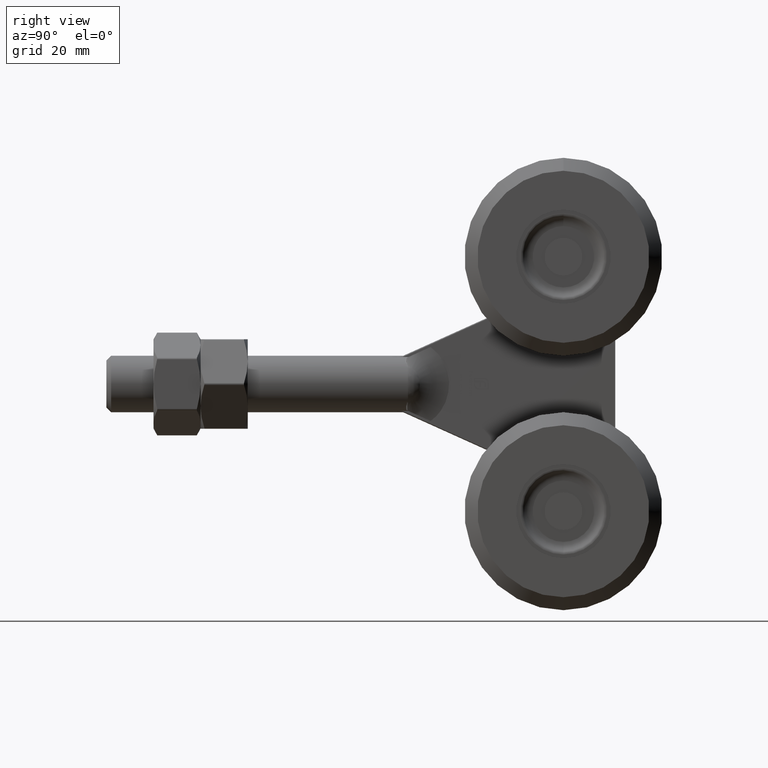
[diagram: clean part render]
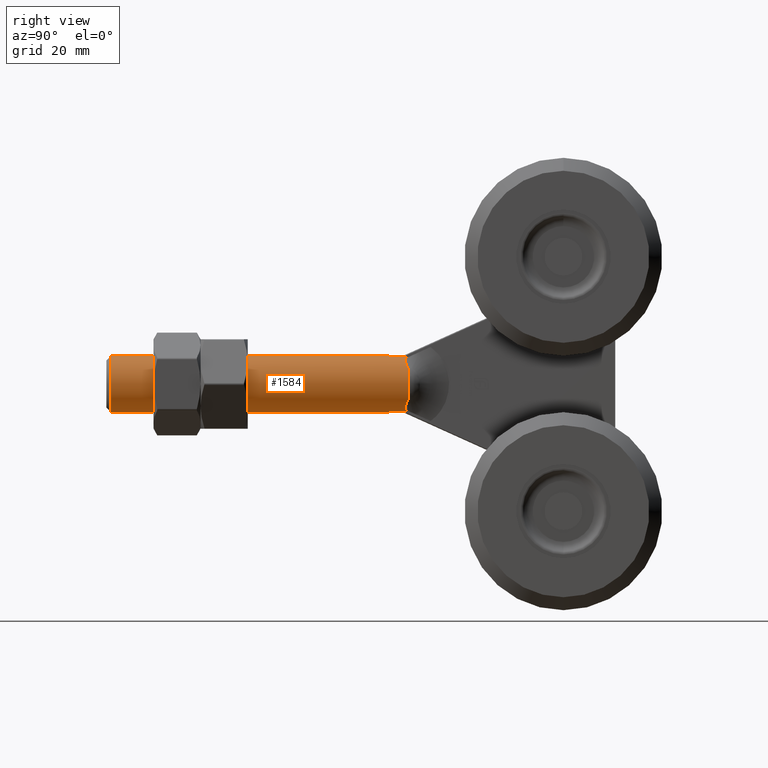
[diagram: same view with one face highlighted and labeled with its STEP entity id]
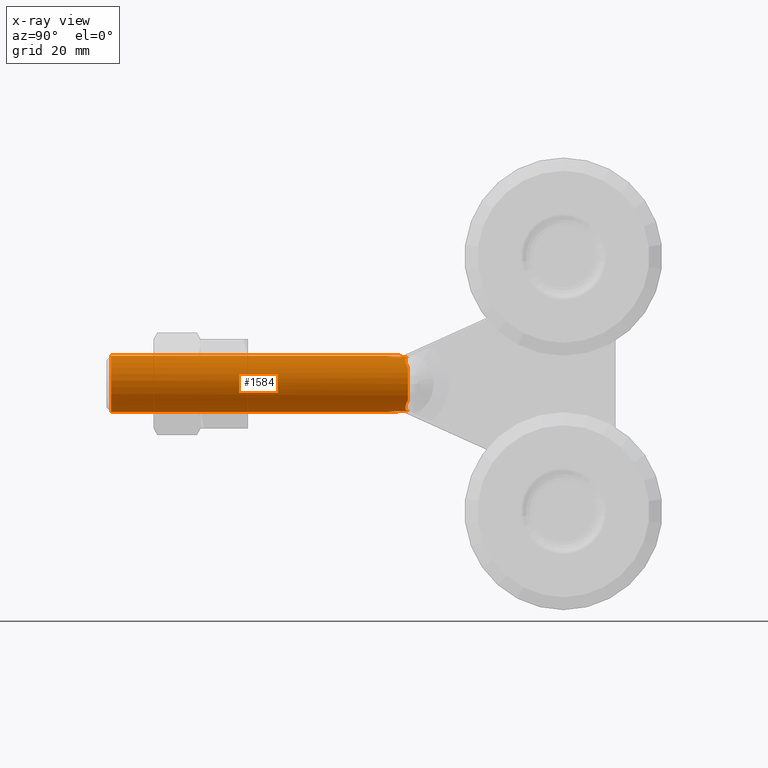
[diagram: x-ray of the same camera — body ghosted, the highlighted face saturated]
A machine part, right view. The second image highlights one B-rep face of the part: STEP entity #1584.
The next image is the same camera in x-ray: the body ghosted, the highlighted face saturated — about 0% of this face is hidden behind the body in this view.
In plain terms, the highlighted cylindrical surface (bore or boss wall) has radius 6 mm, axis along (0, -1, -0).
Its self-contained STEP definition (entity closure, byte-faithful):
#20 = ORIENTED_EDGE ( 'NONE', *, *, #14525, .T. ) ;
#114 = CARTESIAN_POINT ( 'NONE',  ( -0.02555754303099119426, -0.05387995826428611246, -5.999945567419269210 ) ) ;
#176 = VERTEX_POINT ( 'NONE', #6408 ) ;
#191 = CARTESIAN_POINT ( 'NONE',  ( -4.856250000000001066, 0.9500000000000011768, -3.523753103936192232 ) ) ;
#229 = DIRECTION ( 'NONE',  ( 0.000000000000000000, -1.000000000000000000, -1.224646799147353454E-16 ) ) ;
#238 = ORIENTED_EDGE ( 'NONE', *, *, #18565, .F. ) ;
#338 = LINE ( 'NONE', #4889, #3932 ) ;
#355 = CARTESIAN_POINT ( 'NONE',  ( 1.049719006401245380, -2.213237735482397106, 5.931545619683752157 ) ) ;
#361 = CARTESIAN_POINT ( 'NONE',  ( -2.132193120447432477, 0.7444846238725135734, -5.608364511790988161 ) ) ;
#381 = CARTESIAN_POINT ( 'NONE',  ( -1.750000000000000444, -0.07802710960825523512, 5.739120141624507454 ) ) ;
#403 = CARTESIAN_POINT ( 'NONE',  ( 0.000000000000000000, -61.99999999999997158, -6.000000000000000888 ) ) ;
#495 = CARTESIAN_POINT ( 'NONE',  ( -1.667855411254956399, -2.216840521480196280, -5.764508838439502902 ) ) ;
#584 = CARTESIAN_POINT ( 'NONE',  ( -3.776140250571299095, 0.4703988601179117102, 4.665490031516283942 ) ) ;
#601 = EDGE_CURVE ( 'NONE', #2120, #6217, #14562, .T. ) ;
#656 = DIRECTION ( 'NONE',  ( -0.000000000000000000, 1.000000000000000000, 1.224646799147353454E-16 ) ) ;
#742 = CARTESIAN_POINT ( 'NONE',  ( 3.043512781934104350, 0.4499999999999996225, 5.170786201942971338 ) ) ;
#780 = EDGE_LOOP ( 'NONE', ( #4357 ) ) ;
#791 = CARTESIAN_POINT ( 'NONE',  ( -4.021420531599393833, 0.5318647356594973230, 4.455806249624566284 ) ) ;
#843 = CARTESIAN_POINT ( 'NONE',  ( -2.500597746676872735, 0.5443988854629068230, -5.454759071245316449 ) ) ;
#908 = DIRECTION ( 'NONE',  ( 8.881784197001252323E-16, -5.421010862427521554E-17, 1.000000000000000000 ) ) ;
#933 = VERTEX_POINT ( 'NONE', #191 ) ;
#958 = CARTESIAN_POINT ( 'NONE',  ( -1.565217391304357664, -3.282281072664935628, 5.792244342045537842 ) ) ;
#980 = VERTEX_POINT ( 'NONE', #15671 ) ;
#1039 = CARTESIAN_POINT ( 'NONE',  ( 0.02555754302969398886, -0.05387995826139851258, -5.999945567419275427 ) ) ;
#1226 = ORIENTED_EDGE ( 'NONE', *, *, #17199, .F. ) ;
#1274 = ORIENTED_EDGE ( 'NONE', *, *, #19206, .T. ) ;
#1294 = LINE ( 'NONE', #5605, #5350 ) ;
#1308 = LINE ( 'NONE', #1444, #10587 ) ;
#1376 = CARTESIAN_POINT ( 'NONE',  ( 0.02555754302969398886, -0.05387995826139851258, -5.999945567419275427 ) ) ;
#1386 = CARTESIAN_POINT ( 'NONE',  ( 0.008519232535428933675, -0.05371228364879688383, 6.000018144303321144 ) ) ;
#1390 = LINE ( 'NONE', #3728, #9222 ) ;
#1401 = AXIS2_PLACEMENT_3D ( 'NONE', #14840, #2653, #13281 ) ;
#1444 = CARTESIAN_POINT ( 'NONE',  ( -4.856250000000001066, 5.000000000000004441, -3.523753103936191788 ) ) ;
#1506 = B_SPLINE_CURVE_WITH_KNOTS ( 'NONE', 3,
 ( #1758, #6341, #17477, #18900, #12586, #9661, #12790, #11331 ),
 .UNSPECIFIED., .F., .F.,
 ( 4, 2, 2, 4 ),
 ( -1.199625888377036107E-05, 0.0009799149276531803152, 0.001475870520921654773, 0.001971826114190128147 ),
 .UNSPECIFIED. ) ;
#1521 = CARTESIAN_POINT ( 'NONE',  ( 4.856249999999999289, 1.000000000000003997, 3.523753103936209108 ) ) ;
#1523 = EDGE_CURVE ( 'NONE', #6968, #4077, #17232, .T. ) ;
#1584 = ADVANCED_FACE ( 'NONE', ( #10223, #4733 ), #5230, .T. ) ;
#1609 = EDGE_CURVE ( 'NONE', #6380, #4098, #17372, .T. ) ;
#1723 = VERTEX_POINT ( 'NONE', #5488 ) ;
#1758 = CARTESIAN_POINT ( 'NONE',  ( 4.856250000000001066, 0.9500000000000002887, 3.523753103936209552 ) ) ;
#1897 = CARTESIAN_POINT ( 'NONE',  ( -1.750000000000000444, 1.046569788179261273, 5.739120141624507454 ) ) ;
#2009 = CARTESIAN_POINT ( 'NONE',  ( 1.565217391304357664, -3.282281072664984478, -5.792244342045522743 ) ) ;
#2103 = CARTESIAN_POINT ( 'NONE',  ( 0.000000000000000000, 1.000000000000004441, 7.837739514543062104E-15 ) ) ;
#2120 = VERTEX_POINT ( 'NONE', #13876 ) ;
#2156 = CARTESIAN_POINT ( 'NONE',  ( -2.888642137006158794, 0.4499999999999996225, 5.261942704837533569 ) ) ;
#2163 = B_SPLINE_CURVE_WITH_KNOTS ( 'NONE', 3,
 ( #11939, #6262, #10546, #114 ),
 .UNSPECIFIED., .F., .F.,
 ( 4, 4 ),
 ( 0.0004276143398227880079, 0.004010529642340964797 ),
 .UNSPECIFIED. ) ;
#2233 = EDGE_CURVE ( 'NONE', #9276, #1723, #3627, .T. ) ;
#2256 = CARTESIAN_POINT ( 'NONE',  ( -2.132193120447432477, 0.7444846238725135734, -5.608364511790988161 ) ) ;
#2259 = CARTESIAN_POINT ( 'NONE',  ( 1.750000000000000444, 1.046569788179220417, -5.739120141624492355 ) ) ;
#2317 = EDGE_CURVE ( 'NONE', #5953, #2120, #5130, .T. ) ;
#2333 = CARTESIAN_POINT ( 'NONE',  ( 2.500597746676914479, 0.5443988854629049357, 5.454759071245311119 ) ) ;
#2454 = CARTESIAN_POINT ( 'NONE',  ( 1.750000000000000444, -0.07802710960838100951, -5.739120141624492355 ) ) ;
#2500 = CARTESIAN_POINT ( 'NONE',  ( 0.000000000000000000, 0.4499999999999999001, 7.770383940589957457E-15 ) ) ;
#2631 = ORIENTED_EDGE ( 'NONE', *, *, #17106, .T. ) ;
#2653 = DIRECTION ( 'NONE',  ( 0.000000000000000000, -1.000000000000000000, -1.224646799147353454E-16 ) ) ;
#2713 = CARTESIAN_POINT ( 'NONE',  ( -0.02555754303031168573, -0.05387995826001931027, 5.999945567419286974 ) ) ;
#2856 = ORIENTED_EDGE ( 'NONE', *, *, #601, .T. ) ;
#2942 = CARTESIAN_POINT ( 'NONE',  ( -3.043512781934104794, 0.4499999999999996225, 5.170786201942971338 ) ) ;
#3286 = VERTEX_POINT ( 'NONE', #15064 ) ;
#3287 = CARTESIAN_POINT ( 'NONE',  ( -2.422447701451363677, 0.5732603706025812818, -5.489850013155296971 ) ) ;
#3627 = B_SPLINE_CURVE_WITH_KNOTS ( 'NONE', 3,
 ( #11119, #5080, #495, #9642 ),
 .UNSPECIFIED., .F., .F.,
 ( 4, 4 ),
 ( 0.000000000000000000, 0.003212196522227789720 ),
 .UNSPECIFIED. ) ;
#3634 = CARTESIAN_POINT ( 'NONE',  ( 0.5379472129744709008, -1.134087819368808647, 5.997762977445580290 ) ) ;
#3638 = DIRECTION ( 'NONE',  ( -0.000000000000000000, -1.000000000000000000, -5.862926433741014921E-17 ) ) ;
#3693 = EDGE_CURVE ( 'NONE', #11668, #9018, #4792, .T. ) ;
#3716 = CARTESIAN_POINT ( 'NONE',  ( -4.856250000000001066, 0.9500000000000011768, -3.523753103936192232 ) ) ;
#3728 = CARTESIAN_POINT ( 'NONE',  ( -1.750000000000000444, 5.000000000000003553, 5.739120141624508342 ) ) ;
#3753 = CARTESIAN_POINT ( 'NONE',  ( 2.197459358052647804, 0.6871591196870424634, 5.583551534223878399 ) ) ;
#3776 = ORIENTED_EDGE ( 'NONE', *, *, #9366, .T. ) ;
#3844 = CARTESIAN_POINT ( 'NONE',  ( 0.000000000000000000, 0.4499999999999999001, 7.770383940589957457E-15 ) ) ;
#3864 = CARTESIAN_POINT ( 'NONE',  ( 2.132193120447479551, 0.7444846238725111309, 5.608364511790985496 ) ) ;
#3919 = CARTESIAN_POINT ( 'NONE',  ( 4.021420531599392945, 0.5318647356594972120, -4.455806249624549409 ) ) ;
#3924 = DIRECTION ( 'NONE',  ( 0.000000000000000000, 5.421010862427521554E-17, -1.000000000000000000 ) ) ;
#3932 = VECTOR ( 'NONE', #9458, 1000.000000000000000 ) ;
#3936 = CARTESIAN_POINT ( 'NONE',  ( 1.667836570213874658, -2.217036100503336993, -5.764513929786383883 ) ) ;
#4049 = VERTEX_POINT ( 'NONE', #958 ) ;
#4066 = VERTEX_POINT ( 'NONE', #7105 ) ;
#4077 = VERTEX_POINT ( 'NONE', #17764 ) ;
#4098 = VERTEX_POINT ( 'NONE', #8654 ) ;
#4100 = EDGE_CURVE ( 'NONE', #6380, #8281, #10154, .T. ) ;
#4289 = ORIENTED_EDGE ( 'NONE', *, *, #9648, .T. ) ;
#4295 = ORIENTED_EDGE ( 'NONE', *, *, #1609, .F. ) ;
#4357 = ORIENTED_EDGE ( 'NONE', *, *, #16203, .T. ) ;
#4372 = EDGE_CURVE ( 'NONE', #176, #5953, #11291, .T. ) ;
#4477 = B_SPLINE_CURVE_WITH_KNOTS ( 'NONE', 3,
 ( #5017, #2156, #9650, #8268, #9807, #5145, #5297, #9585 ),
 .UNSPECIFIED., .F., .F.,
 ( 4, 2, 2, 4 ),
 ( 0.000000000000000000, 0.0005387395390766529929, 0.0008081093086149806820, 0.001077479078153308371 ),
 .UNSPECIFIED. ) ;
#4559 = VERTEX_POINT ( 'NONE', #742 ) ;
#4681 = CARTESIAN_POINT ( 'NONE',  ( 1.750000000000000444, 1.046569788179220417, -5.739120141624492355 ) ) ;
#4691 = EDGE_CURVE ( 'NONE', #18926, #16028, #14192, .T. ) ;
#4727 = ORIENTED_EDGE ( 'NONE', *, *, #6730, .T. ) ;
#4733 = FACE_OUTER_BOUND ( 'NONE', #780, .T. ) ;
#4792 =( BOUNDED_CURVE ( )  B_SPLINE_CURVE ( 3, ( #3864, #17537, #10024, #9740 ),
 .UNSPECIFIED., .F., .T. ) 
 B_SPLINE_CURVE_WITH_KNOTS ( ( 4, 4 ),
 ( 2.778287570809853335, 2.845623850230861951 ),
 .UNSPECIFIED. ) 
 CURVE ( )  GEOMETRIC_REPRESENTATION_ITEM ( )  RATIONAL_B_SPLINE_CURVE ( ( 1.000000000000000000, 0.9996221878137172556, 0.9996221878137172556, 1.000000000000000000 ) ) 
 REPRESENTATION_ITEM ( '' )  );
#4889 = CARTESIAN_POINT ( 'NONE',  ( -1.750000000000000444, 5.000000000000005329, -5.739120141624491467 ) ) ;
#4937 = CARTESIAN_POINT ( 'NONE',  ( -1.049719006400998911, -2.213237735481881074, 5.931545619683818771 ) ) ;
#5017 = CARTESIAN_POINT ( 'NONE',  ( -3.043512781934104794, 0.4499999999999996225, 5.170786201942971338 ) ) ;
#5080 = CARTESIAN_POINT ( 'NONE',  ( -1.749999999999999778, -1.148846607804307363, -5.739120141624492355 ) ) ;
#5130 = B_SPLINE_CURVE_WITH_KNOTS ( 'NONE', 3,
 ( #18888, #355, #3634, #8063 ),
 .UNSPECIFIED., .F., .F.,
 ( 4, 4 ),
 ( 0.0004276143398227922904, 0.004010529642343368256 ),
 .UNSPECIFIED. ) ;
#5143 = AXIS2_PLACEMENT_3D ( 'NONE', #3844, #8409, #17318 ) ;
#5145 = CARTESIAN_POINT ( 'NONE',  ( -2.271380028894856906, 0.6449973120058875020, 5.554063982460044180 ) ) ;
#5150 = ORIENTED_EDGE ( 'NONE', *, *, #12496, .T. ) ;
#5189 = CARTESIAN_POINT ( 'NONE',  ( 2.733400872732894005, 0.4751253949154338185, 5.343974376156526596 ) ) ;
#5209 = EDGE_CURVE ( 'NONE', #933, #11196, #13355, .T. ) ;
#5218 = ORIENTED_EDGE ( 'NONE', *, *, #7937, .T. ) ;
#5229 = CARTESIAN_POINT ( 'NONE',  ( -1.750000000000001998, -1.148848604551356400, 5.739120141624503013 ) ) ;
#5230 = CYLINDRICAL_SURFACE ( 'NONE', #13187, 6.000000000000000888 ) ;
#5297 = CARTESIAN_POINT ( 'NONE',  ( -2.197625333360919253, 0.6870133380608722806, 5.583488433580241939 ) ) ;
#5307 = CARTESIAN_POINT ( 'NONE',  ( -4.021399631118547369, 0.5318584129882319989, -4.455824863078196252 ) ) ;
#5323 = ORIENTED_EDGE ( 'NONE', *, *, #1523, .T. ) ;
#5350 = VECTOR ( 'NONE', #19000, 1000.000000000000000 ) ;
#5392 = CARTESIAN_POINT ( 'NONE',  ( 2.132193120447479551, 0.7444846238725111309, 5.608364511790985496 ) ) ;
#5425 = CARTESIAN_POINT ( 'NONE',  ( 3.776140250571298207, 0.4703988601179114881, -4.665490031516268843 ) ) ;
#5455 = ORIENTED_EDGE ( 'NONE', *, *, #12086, .T. ) ;
#5488 = CARTESIAN_POINT ( 'NONE',  ( -1.565217391304360106, -3.282281072664988031, -5.792244342045522743 ) ) ;
#5605 = CARTESIAN_POINT ( 'NONE',  ( 1.750000000000000444, 5.000000000000003553, 5.739120141624508342 ) ) ;
#5623 = CARTESIAN_POINT ( 'NONE',  ( 1.750000000000000444, 5.000000000000005329, -5.739120141624491467 ) ) ;
#5692 = VERTEX_POINT ( 'NONE', #2942 ) ;
#5713 = B_SPLINE_CURVE_WITH_KNOTS ( 'NONE', 3,
 ( #8489, #3936, #14563, #2454 ),
 .UNSPECIFIED., .F., .F.,
 ( 4, 4 ),
 ( -3.229585084563497711E-05, 0.003179311020173248691 ),
 .UNSPECIFIED. ) ;
#5777 = VERTEX_POINT ( 'NONE', #12227 ) ;
#5953 = VERTEX_POINT ( 'NONE', #7995 ) ;
#5980 = CARTESIAN_POINT ( 'NONE',  ( -0.008519232534740012533, -0.05371228364879446215, 6.000018144303322920 ) ) ;
#6217 = VERTEX_POINT ( 'NONE', #2713 ) ;
#6262 = CARTESIAN_POINT ( 'NONE',  ( -1.049719006401583998, -2.213237735483159163, -5.931545619683645576 ) ) ;
#6296 = AXIS2_PLACEMENT_3D ( 'NONE', #17536, #12995, #3924 ) ;
#6330 = CARTESIAN_POINT ( 'NONE',  ( 3.513145945953412230, 0.4500000000000001221, -4.863929025225496083 ) ) ;
#6341 = CARTESIAN_POINT ( 'NONE',  ( 4.674578091001722946, 0.8332488690343099469, 3.774123712219564553 ) ) ;
#6380 = VERTEX_POINT ( 'NONE', #2256 ) ;
#6408 = CARTESIAN_POINT ( 'NONE',  ( 1.750000000000000444, -0.07802710960826217401, 5.739120141624507454 ) ) ;
#6409 = B_SPLINE_CURVE_WITH_KNOTS ( 'NONE', 3,
 ( #13864, #17034, #4937, #14130 ),
 .UNSPECIFIED., .F., .F.,
 ( 4, 4 ),
 ( 3.915185015209727827E-05, 0.003625368539805953749 ),
 .UNSPECIFIED. ) ;
#6423 = DIRECTION ( 'NONE',  ( 0.000000000000000000, 1.084202172485504311E-16, -1.000000000000000000 ) ) ;
#6598 = CARTESIAN_POINT ( 'NONE',  ( -2.197459358052603395, 0.6871591196870449059, -5.583551534223882840 ) ) ;
#6730 = EDGE_CURVE ( 'NONE', #12369, #18926, #13408, .T. ) ;
#6746 = CARTESIAN_POINT ( 'NONE',  ( -2.888463750631225846, 0.4499999999999976796, -5.262047702644625069 ) ) ;
#6759 = CARTESIAN_POINT ( 'NONE',  ( -4.674578090999754743, 0.8332488690432017231, -3.774123712222266835 ) ) ;
#6869 = LINE ( 'NONE', #15823, #18989 ) ;
#6874 = VERTEX_POINT ( 'NONE', #12745 ) ;
#6934 = VERTEX_POINT ( 'NONE', #12685 ) ;
#6968 = VERTEX_POINT ( 'NONE', #2259 ) ;
#7033 = CIRCLE ( 'NONE', #9153, 6.000000000000000888 ) ;
#7105 = CARTESIAN_POINT ( 'NONE',  ( 4.856250000000001066, 0.9500000000000002887, 3.523753103936209552 ) ) ;
#7126 = CARTESIAN_POINT ( 'NONE',  ( 3.513145945953412230, 0.4500000000000001221, -4.863929025225496083 ) ) ;
#7131 = B_SPLINE_CURVE_WITH_KNOTS ( 'NONE', 3,
 ( #5392, #3753, #12906, #11361, #2333, #5189, #12820, #9777 ),
 .UNSPECIFIED., .F., .F.,
 ( 4, 2, 2, 4 ),
 ( 0.000000000000000000, 0.0002707026910762850083, 0.0005414053821525700166, 0.001082810764305141334 ),
 .UNSPECIFIED. ) ;
#7279 = ORIENTED_EDGE ( 'NONE', *, *, #11864, .T. ) ;
#7292 = ORIENTED_EDGE ( 'NONE', *, *, #4100, .T. ) ;
#7334 = ORIENTED_EDGE ( 'NONE', *, *, #13212, .T. ) ;
#7342 = ORIENTED_EDGE ( 'NONE', *, *, #14544, .T. ) ;
#7369 = CARTESIAN_POINT ( 'NONE',  ( 4.856250000000001066, 5.000000000000004441, -3.523753103936192232 ) ) ;
#7579 = EDGE_CURVE ( 'NONE', #10015, #7654, #5713, .T. ) ;
#7654 = VERTEX_POINT ( 'NONE', #14895 ) ;
#7865 = ORIENTED_EDGE ( 'NONE', *, *, #14341, .T. ) ;
#7911 = CARTESIAN_POINT ( 'NONE',  ( 1.667855411254317799, -2.216840521480061721, 5.764508838439690308 ) ) ;
#7937 = EDGE_CURVE ( 'NONE', #11196, #4098, #8148, .T. ) ;
#7995 = CARTESIAN_POINT ( 'NONE',  ( 1.565217391304360772, -3.282281072664944510, 5.792244342045536953 ) ) ;
#8038 = CARTESIAN_POINT ( 'NONE',  ( 1.565217391304360772, -3.282281072664944510, 5.792244342045536953 ) ) ;
#8063 = CARTESIAN_POINT ( 'NONE',  ( 0.02555754303099688762, -0.05387995826158397533, 5.999945567419285197 ) ) ;
#8099 = DIRECTION ( 'NONE',  ( 0.000000000000000000, -1.000000000000000000, -1.224646799147353454E-16 ) ) ;
#8148 = CIRCLE ( 'NONE', #5143, 6.000000000000000888 ) ;
#8162 = ORIENTED_EDGE ( 'NONE', *, *, #13894, .T. ) ;
#8176 = ORIENTED_EDGE ( 'NONE', *, *, #12989, .T. ) ;
#8268 = CARTESIAN_POINT ( 'NONE',  ( -2.499917394991852504, 0.5446562278043571848, 5.455063371825753293 ) ) ;
#8277 = CARTESIAN_POINT ( 'NONE',  ( -1.750000000000000444, -0.07802710960825523512, 5.739120141624507454 ) ) ;
#8281 = VERTEX_POINT ( 'NONE', #19100 ) ;
#8283 = CARTESIAN_POINT ( 'NONE',  ( -1.750000000000000444, -0.07802710960837927479, -5.739120141624492355 ) ) ;
#8362 = CARTESIAN_POINT ( 'NONE',  ( 0.000000000000000000, -61.99999999999997158, 1.224646799147381310E-16 ) ) ;
#8409 = DIRECTION ( 'NONE',  ( 0.000000000000000000, -1.000000000000000000, -5.862926433741014921E-17 ) ) ;
#8421 = ORIENTED_EDGE ( 'NONE', *, *, #3693, .T. ) ;
#8489 = CARTESIAN_POINT ( 'NONE',  ( 1.565217391304357664, -3.282281072664984478, -5.792244342045522743 ) ) ;
#8575 = CARTESIAN_POINT ( 'NONE',  ( 2.197625333360873956, 0.6870133380608728357, -5.583488433580245491 ) ) ;
#8654 = CARTESIAN_POINT ( 'NONE',  ( -3.043512781934071487, 0.4500000000000001776, -5.170786201942975779 ) ) ;
#8790 = CARTESIAN_POINT ( 'NONE',  ( 4.669710664566896874, 0.8332049842326330058, -3.770674143746878482 ) ) ;
#8834 = DIRECTION ( 'NONE',  ( 0.000000000000000000, -1.000000000000000000, -1.224646799147353454E-16 ) ) ;
#9018 = VERTEX_POINT ( 'NONE', #12079 ) ;
#9055 = EDGE_CURVE ( 'NONE', #16028, #4066, #15287, .T. ) ;
#9153 = AXIS2_PLACEMENT_3D ( 'NONE', #8362, #17601, #14355 ) ;
#9222 = VECTOR ( 'NONE', #656, 1000.000000000000000 ) ;
#9247 = ORIENTED_EDGE ( 'NONE', *, *, #13371, .T. ) ;
#9276 = VERTEX_POINT ( 'NONE', #8283 ) ;
#9315 = CARTESIAN_POINT ( 'NONE',  ( 0.000000000000000000, 5.000000000000004441, 8.327598234202002696E-15 ) ) ;
#9366 = EDGE_CURVE ( 'NONE', #5777, #4559, #13379, .T. ) ;
#9410 = ORIENTED_EDGE ( 'NONE', *, *, #19288, .T. ) ;
#9458 = DIRECTION ( 'NONE',  ( 0.000000000000000000, -1.000000000000000000, -1.224646799147353454E-16 ) ) ;
#9462 = CARTESIAN_POINT ( 'NONE',  ( 3.043512781934075928, 0.4500000000000001776, -5.170786201942972227 ) ) ;
#9505 = ORIENTED_EDGE ( 'NONE', *, *, #17341, .T. ) ;
#9550 = EDGE_CURVE ( 'NONE', #4066, #5777, #1506, .T. ) ;
#9585 = CARTESIAN_POINT ( 'NONE',  ( -2.132193120447479107, 0.7444846238725129073, 5.608364511790985496 ) ) ;
#9642 = CARTESIAN_POINT ( 'NONE',  ( -1.565217391304360106, -3.282281072664988031, -5.792244342045522743 ) ) ;
#9648 = EDGE_CURVE ( 'NONE', #4049, #18789, #13470, .T. ) ;
#9650 = CARTESIAN_POINT ( 'NONE',  ( -2.731443171983536811, 0.4755993146296455532, 5.344944498111796172 ) ) ;
#9653 = CARTESIAN_POINT ( 'NONE',  ( -4.362354273313433062, 0.6685099922975211717, 4.122486518212487461 ) ) ;
#9661 = CARTESIAN_POINT ( 'NONE',  ( 3.776129083849194767, 0.4703971470681767020, 4.665498831389263579 ) ) ;
#9714 = CARTESIAN_POINT ( 'NONE',  ( -2.733400872732856257, 0.4751253949154353728, -5.343974376156531925 ) ) ;
#9727 = CARTESIAN_POINT ( 'NONE',  ( -4.856250000000001066, 0.9500000000000002887, 3.523753103936208220 ) ) ;
#9740 = CARTESIAN_POINT ( 'NONE',  ( 1.750000000000000444, 1.046569788179261273, 5.739120141624507454 ) ) ;
#9769 = DIRECTION ( 'NONE',  ( -0.000000000000000000, 1.000000000000000000, 1.224646799147353454E-16 ) ) ;
#9777 = CARTESIAN_POINT ( 'NONE',  ( 3.043512781934104350, 0.4499999999999996225, 5.170786201942971338 ) ) ;
#9807 = CARTESIAN_POINT ( 'NONE',  ( -2.423092847933317362, 0.5729655953745529384, 5.489573299193361677 ) ) ;
#9819 = CARTESIAN_POINT ( 'NONE',  ( -4.473974821044807371, 0.7159300939320508705, -4.010443945568603397 ) ) ;
#10015 = VERTEX_POINT ( 'NONE', #2009 ) ;
#10017 = CARTESIAN_POINT ( 'NONE',  ( -3.648137841400338477, 0.4500000000000008993, -4.766426321595080395 ) ) ;
#10024 = CARTESIAN_POINT ( 'NONE',  ( 1.878841341755855820, 0.9558050892287081046, 5.699833222635400709 ) ) ;
#10054 = CARTESIAN_POINT ( 'NONE',  ( 2.888642137006127708, 0.4500000000000001221, -5.261942704837538898 ) ) ;
#10083 = CARTESIAN_POINT ( 'NONE',  ( -3.513145945953414007, 0.4500000000000001221, -4.863929025225494307 ) ) ;
#10121 = CARTESIAN_POINT ( 'NONE',  ( -1.878841341755840944, 0.9558050892286721334, -5.699833222635389163 ) ) ;
#10154 =( BOUNDED_CURVE ( )  B_SPLINE_CURVE ( 3, ( #13236, #19200, #10121, #10183 ),
 .UNSPECIFIED., .F., .F. ) 
 B_SPLINE_CURVE_WITH_KNOTS ( ( 4, 4 ),
 ( 2.778287570809861329, 2.845623850230861951 ),
 .UNSPECIFIED. ) 
 CURVE ( )  GEOMETRIC_REPRESENTATION_ITEM ( )  RATIONAL_B_SPLINE_CURVE ( ( 1.000000000000000000, 0.9996221878137172556, 0.9996221878137172556, 1.000000000000000000 ) ) 
 REPRESENTATION_ITEM ( '' )  );
#10183 = CARTESIAN_POINT ( 'NONE',  ( -1.750000000000000444, 1.046569788179220417, -5.739120141624492355 ) ) ;
#10223 = FACE_OUTER_BOUND ( 'NONE', #13041, .T. ) ;
#10338 = B_SPLINE_CURVE_WITH_KNOTS ( 'NONE', 3,
 ( #10718, #12286, #19589, #12040 ),
 .UNSPECIFIED., .F., .F.,
 ( 4, 4 ),
 ( 3.915185015206252281E-05, 0.003625368539804985340 ),
 .UNSPECIFIED. ) ;
#10535 = CARTESIAN_POINT ( 'NONE',  ( 2.132193120447479551, 0.7444846238725111309, 5.608364511790985496 ) ) ;
#10546 = CARTESIAN_POINT ( 'NONE',  ( -0.5379472129951974324, -1.134087819360787286, -5.997762977445477262 ) ) ;
#10587 = VECTOR ( 'NONE', #8834, 1000.000000000000000 ) ;
#10718 = CARTESIAN_POINT ( 'NONE',  ( 0.02555754302969398886, -0.05387995826139851258, -5.999945567419275427 ) ) ;
#10879 = DIRECTION ( 'NONE',  ( 0.000000000000000000, -1.000000000000000000, -1.224646799147353454E-16 ) ) ;
#11119 = CARTESIAN_POINT ( 'NONE',  ( -1.750000000000000444, -0.07802710960837927479, -5.739120141624492355 ) ) ;
#11157 = CARTESIAN_POINT ( 'NONE',  ( 1.750000000000000222, -1.148846607804214992, 5.739120141624505678 ) ) ;
#11196 = VERTEX_POINT ( 'NONE', #11433 ) ;
#11291 = B_SPLINE_CURVE_WITH_KNOTS ( 'NONE', 3,
 ( #12748, #11157, #7911, #8038 ),
 .UNSPECIFIED., .F., .F.,
 ( 4, 4 ),
 ( 1.761828530288944705E-19, 0.003212196522227864313 ),
 .UNSPECIFIED. ) ;
#11331 = CARTESIAN_POINT ( 'NONE',  ( 3.513145945953412674, 0.4499999999999996780, 4.863929025225510294 ) ) ;
#11361 = CARTESIAN_POINT ( 'NONE',  ( 2.422447701451406310, 0.5732603706025795054, 5.489850013155293418 ) ) ;
#11399 = CARTESIAN_POINT ( 'NONE',  ( -4.669710664566895097, 0.8332049842326294531, 3.770674143746894469 ) ) ;
#11411 = VERTEX_POINT ( 'NONE', #19503 ) ;
#11433 = CARTESIAN_POINT ( 'NONE',  ( -3.513145945953414007, 0.4500000000000001221, -4.863929025225494307 ) ) ;
#11468 = CARTESIAN_POINT ( 'NONE',  ( -3.043512781934071487, 0.4500000000000001776, -5.170786201942975779 ) ) ;
#11595 = CARTESIAN_POINT ( 'NONE',  ( 3.648143724456124115, 0.4500000000000009548, -4.766422072348540873 ) ) ;
#11631 = CARTESIAN_POINT ( 'NONE',  ( 2.132193120447432921, 0.7444846238725122411, -5.608364511790987272 ) ) ;
#11668 = VERTEX_POINT ( 'NONE', #10535 ) ;
#11736 = DIRECTION ( 'NONE',  ( 0.000000000000000000, -1.000000000000000000, -5.862926433741014921E-17 ) ) ;
#11769 = CARTESIAN_POINT ( 'NONE',  ( 2.423092847933277838, 0.5729655953745530494, -5.489573299193363454 ) ) ;
#11864 = EDGE_CURVE ( 'NONE', #980, #19505, #19609, .T. ) ;
#11906 = ORIENTED_EDGE ( 'NONE', *, *, #4691, .T. ) ;
#11939 = CARTESIAN_POINT ( 'NONE',  ( -1.565217391304360106, -3.282281072664988031, -5.792244342045522743 ) ) ;
#11973 = ORIENTED_EDGE ( 'NONE', *, *, #9550, .T. ) ;
#12040 = CARTESIAN_POINT ( 'NONE',  ( 1.565217391304357664, -3.282281072664984478, -5.792244342045522743 ) ) ;
#12079 = CARTESIAN_POINT ( 'NONE',  ( 1.750000000000000444, 1.046569788179261273, 5.739120141624507454 ) ) ;
#12086 = EDGE_CURVE ( 'NONE', #8281, #9276, #338, .T. ) ;
#12227 = CARTESIAN_POINT ( 'NONE',  ( 3.513145945953412674, 0.4499999999999996780, 4.863929025225510294 ) ) ;
#12286 = CARTESIAN_POINT ( 'NONE',  ( 0.5379472129931639479, -1.134087819359417715, -5.997762977445598054 ) ) ;
#12308 = AXIS2_PLACEMENT_3D ( 'NONE', #2103, #8099, #6423 ) ;
#12369 = VERTEX_POINT ( 'NONE', #16384 ) ;
#12381 = CARTESIAN_POINT ( 'NONE',  ( -2.271717989733836873, 0.6448484089512421802, -5.553917843138109767 ) ) ;
#12496 = EDGE_CURVE ( 'NONE', #1723, #980, #2163, .T. ) ;
#12538 = CIRCLE ( 'NONE', #12724, 6.000000000000000888 ) ;
#12569 = DIRECTION ( 'NONE',  ( 0.000000000000000000, 5.421010862427521554E-17, -1.000000000000000000 ) ) ;
#12586 = CARTESIAN_POINT ( 'NONE',  ( 4.021399631118548257, 0.5318584129882315548, 4.455824863078211351 ) ) ;
#12639 = AXIS2_PLACEMENT_3D ( 'NONE', #18892, #3638, #12569 ) ;
#12685 = CARTESIAN_POINT ( 'NONE',  ( -3.513145945953414007, 0.4499999999999996780, 4.863929025225510294 ) ) ;
#12724 = AXIS2_PLACEMENT_3D ( 'NONE', #2500, #11736, #908 ) ;
#12745 = CARTESIAN_POINT ( 'NONE',  ( -4.856250000000000178, 1.000000000000004885, -3.523753103936191788 ) ) ;
#12748 = CARTESIAN_POINT ( 'NONE',  ( 1.750000000000000444, -0.07802710960826217401, 5.739120141624507454 ) ) ;
#12790 = CARTESIAN_POINT ( 'NONE',  ( 3.648137841400338033, 0.4500000000000001776, 4.766426321595095494 ) ) ;
#12820 = CARTESIAN_POINT ( 'NONE',  ( 2.888463750631260485, 0.4499999999999963474, 5.262047702644621516 ) ) ;
#12906 = CARTESIAN_POINT ( 'NONE',  ( 2.271717989733883503, 0.6448484089512401818, 5.553917843138106214 ) ) ;
#12917 = VERTEX_POINT ( 'NONE', #403 ) ;
#12989 = EDGE_CURVE ( 'NONE', #17994, #11411, #6869, .T. ) ;
#12995 = DIRECTION ( 'NONE',  ( -0.000000000000000000, -1.000000000000000000, -5.862926433741014921E-17 ) ) ;
#13041 = EDGE_LOOP ( 'NONE', ( #5150, #7279, #2631, #16414, #17650, #5323, #238, #9410, #7342, #4727, #11906, #14992, #11973, #3776, #1226, #8421, #16354, #17613, #13305, #2856, #1274, #4289, #7334, #8162, #17476, #20, #7865, #8176, #9247, #9505, #17379, #5218, #4295, #7292, #5455, #13858 ) ) ;
#13047 = CIRCLE ( 'NONE', #12308, 6.000000000000000888 ) ;
#13116 = CARTESIAN_POINT ( 'NONE',  ( -4.856250000000001066, 0.9500000000000002887, 3.523753103936208220 ) ) ;
#13130 = CARTESIAN_POINT ( 'NONE',  ( 4.139039464442880956, 0.5736326646837970333, -4.346651839119846983 ) ) ;
#13187 = AXIS2_PLACEMENT_3D ( 'NONE', #9315, #229, #17188 ) ;
#13212 = EDGE_CURVE ( 'NONE', #18789, #13240, #1390, .T. ) ;
#13236 = CARTESIAN_POINT ( 'NONE',  ( -2.132193120447432477, 0.7444846238725135734, -5.608364511790988161 ) ) ;
#13240 = VERTEX_POINT ( 'NONE', #1897 ) ;
#13281 = DIRECTION ( 'NONE',  ( 0.000000000000000000, 1.084202172485504311E-16, -1.000000000000000000 ) ) ;
#13305 = ORIENTED_EDGE ( 'NONE', *, *, #2317, .T. ) ;
#13324 = VERTEX_POINT ( 'NONE', #9462 ) ;
#13355 = B_SPLINE_CURVE_WITH_KNOTS ( 'NONE', 3,
 ( #3716, #6759, #9819, #14407, #5307, #15935, #10017, #10083 ),
 .UNSPECIFIED., .F., .F.,
 ( 4, 2, 2, 4 ),
 ( -1.199625888376762854E-05, 0.0009799149276531722921, 0.001475870520921643064, 0.001971826114190114269 ),
 .UNSPECIFIED. ) ;
#13371 = EDGE_CURVE ( 'NONE', #11411, #6874, #13047, .T. ) ;
#13379 = CIRCLE ( 'NONE', #6296, 6.000000000000000888 ) ;
#13408 = LINE ( 'NONE', #7369, #17205 ) ;
#13470 = B_SPLINE_CURVE_WITH_KNOTS ( 'NONE', 3,
 ( #17405, #15808, #5229, #8277 ),
 .UNSPECIFIED., .F., .F.,
 ( 4, 4 ),
 ( -3.229585084563526171E-05, 0.003179311020173315912 ),
 .UNSPECIFIED. ) ;
#13479 = CARTESIAN_POINT ( 'NONE',  ( 0.008519232534330558812, -0.05371228364883175177, -6.000018144303306045 ) ) ;
#13506 = VECTOR ( 'NONE', #19284, 1000.000000000000000 ) ;
#13858 = ORIENTED_EDGE ( 'NONE', *, *, #2233, .T. ) ;
#13864 = CARTESIAN_POINT ( 'NONE',  ( -0.02555754303031168573, -0.05387995826001931027, 5.999945567419286974 ) ) ;
#13876 = CARTESIAN_POINT ( 'NONE',  ( 0.02555754303099688762, -0.05387995826158397533, 5.999945567419285197 ) ) ;
#13894 = EDGE_CURVE ( 'NONE', #13240, #3286, #18187, .T. ) ;
#14058 = CARTESIAN_POINT ( 'NONE',  ( 2.132193120447432921, 0.7444846238725122411, -5.608364511790987272 ) ) ;
#14130 = CARTESIAN_POINT ( 'NONE',  ( -1.565217391304357664, -3.282281072664935628, 5.792244342045537842 ) ) ;
#14192 = CIRCLE ( 'NONE', #1401, 6.000000000000000888 ) ;
#14195 = CARTESIAN_POINT ( 'NONE',  ( -4.139039464442881844, 0.5736326646837949239, 4.346651839119862970 ) ) ;
#14337 = CARTESIAN_POINT ( 'NONE',  ( -3.648143724456126780, 0.4500000000000003997, 4.766422072348555083 ) ) ;
#14341 = EDGE_CURVE ( 'NONE', #6934, #17994, #15803, .T. ) ;
#14355 = DIRECTION ( 'NONE',  ( 0.000000000000000000, 0.000000000000000000, -1.000000000000000000 ) ) ;
#14407 = CARTESIAN_POINT ( 'NONE',  ( -4.139014099421853388, 0.5736233400418531136, -4.346675755075338543 ) ) ;
#14454 = EDGE_CURVE ( 'NONE', #7654, #6968, #15179, .T. ) ;
#14525 = EDGE_CURVE ( 'NONE', #5692, #6934, #12538, .T. ) ;
#14536 = CARTESIAN_POINT ( 'NONE',  ( 4.362354273313433950, 0.6685099922975233921, -4.122486518212472362 ) ) ;
#14544 = EDGE_CURVE ( 'NONE', #15688, #12369, #17971, .T. ) ;
#14562 =( BOUNDED_CURVE ( )  B_SPLINE_CURVE ( 3, ( #19007, #1386, #5980, #14861 ),
 .UNSPECIFIED., .F., .T. ) 
 B_SPLINE_CURVE_WITH_KNOTS ( ( 4, 4 ),
 ( 3.137333050203441775, 3.145852256976029881 ),
 .UNSPECIFIED. ) 
 CURVE ( )  GEOMETRIC_REPRESENTATION_ITEM ( )  RATIONAL_B_SPLINE_CURVE ( ( 1.000000000000000000, 0.9999939519354752449, 0.9999939519354752449, 1.000000000000000000 ) ) 
 REPRESENTATION_ITEM ( '' )  );
#14563 = CARTESIAN_POINT ( 'NONE',  ( 1.749999999999999778, -1.148848604551457431, -5.739120141624492355 ) ) ;
#14840 = CARTESIAN_POINT ( 'NONE',  ( 0.000000000000000000, 1.000000000000004441, 7.837739514543062104E-15 ) ) ;
#14857 = CARTESIAN_POINT ( 'NONE',  ( 2.499917394991815200, 0.5446562278043578509, -5.455063371825755958 ) ) ;
#14861 = CARTESIAN_POINT ( 'NONE',  ( -0.02555754303031168573, -0.05387995826001931027, 5.999945567419286974 ) ) ;
#14895 = CARTESIAN_POINT ( 'NONE',  ( 1.750000000000000444, -0.07802710960838100951, -5.739120141624492355 ) ) ;
#14992 = ORIENTED_EDGE ( 'NONE', *, *, #9055, .T. ) ;
#15064 = CARTESIAN_POINT ( 'NONE',  ( -2.132193120447479107, 0.7444846238725129073, 5.608364511790985496 ) ) ;
#15134 = CARTESIAN_POINT ( 'NONE',  ( 1.878841341755841832, 0.9558050892286702460, -5.699833222635388275 ) ) ;
#15179 = LINE ( 'NONE', #5623, #13506 ) ;
#15208 = B_SPLINE_CURVE_WITH_KNOTS ( 'NONE', 3,
 ( #19133, #10054, #19323, #14857, #11769, #17702, #8575, #11631 ),
 .UNSPECIFIED., .F., .F.,
 ( 4, 2, 2, 4 ),
 ( 0.000000000000000000, 0.0005387395390766614497, 0.0008081093086149926082, 0.001077479078153323767 ),
 .UNSPECIFIED. ) ;
#15287 = LINE ( 'NONE', #16795, #19525 ) ;
#15671 = CARTESIAN_POINT ( 'NONE',  ( -0.02555754303099119426, -0.05387995826428611246, -5.999945567419269210 ) ) ;
#15688 = VERTEX_POINT ( 'NONE', #6330 ) ;
#15728 = CARTESIAN_POINT ( 'NONE',  ( -3.513145945953414007, 0.4499999999999996780, 4.863929025225510294 ) ) ;
#15803 = B_SPLINE_CURVE_WITH_KNOTS ( 'NONE', 3,
 ( #15728, #14337, #584, #791, #14195, #9653, #17525, #11399, #18768, #9727 ),
 .UNSPECIFIED., .F., .F.,
 ( 4, 2, 2, 2, 4 ),
 ( 0.000000000000000000, 0.0004924282954532820068, 0.0009848565909065629294, 0.001477284886359843960, 0.001969713181813124991 ),
 .UNSPECIFIED. ) ;
#15808 = CARTESIAN_POINT ( 'NONE',  ( -1.667836570204093816, -2.217036100502253415, 5.764513929789043978 ) ) ;
#15823 = CARTESIAN_POINT ( 'NONE',  ( -4.856250000000001066, 5.000000000000004441, 3.523753103936208664 ) ) ;
#15935 = CARTESIAN_POINT ( 'NONE',  ( -3.776129083849196100, 0.4703971470681764799, -4.665498831389247592 ) ) ;
#16028 = VERTEX_POINT ( 'NONE', #1521 ) ;
#16203 = EDGE_CURVE ( 'NONE', #12917, #12917, #7033, .T. ) ;
#16354 = ORIENTED_EDGE ( 'NONE', *, *, #17974, .T. ) ;
#16355 = CARTESIAN_POINT ( 'NONE',  ( -2.132193120447479107, 0.7444846238725129073, 5.608364511790985496 ) ) ;
#16384 = CARTESIAN_POINT ( 'NONE',  ( 4.856250000000001066, 0.9500000000000011768, -3.523753103936192677 ) ) ;
#16414 = ORIENTED_EDGE ( 'NONE', *, *, #7579, .T. ) ;
#16419 = CARTESIAN_POINT ( 'NONE',  ( -1.750000000000000444, 1.046569788179261273, 5.739120141624507454 ) ) ;
#16623 = CARTESIAN_POINT ( 'NONE',  ( 4.766060082098338313, 0.8920396087924470363, -3.648048074636807581 ) ) ;
#16795 = CARTESIAN_POINT ( 'NONE',  ( 4.856250000000001066, 5.000000000000004441, 3.523753103936209996 ) ) ;
#16819 = EDGE_CURVE ( 'NONE', #5692, #3286, #4477, .T. ) ;
#17034 = CARTESIAN_POINT ( 'NONE',  ( -0.5379472129730952235, -1.134087819368200023, 5.997762977445644239 ) ) ;
#17106 = EDGE_CURVE ( 'NONE', #19505, #10015, #10338, .T. ) ;
#17188 = DIRECTION ( 'NONE',  ( 0.000000000000000000, 1.445602896647338917E-16, -1.000000000000000000 ) ) ;
#17199 = EDGE_CURVE ( 'NONE', #11668, #4559, #7131, .T. ) ;
#17205 = VECTOR ( 'NONE', #17954, 1000.000000000000000 ) ;
#17232 =( BOUNDED_CURVE ( )  B_SPLINE_CURVE ( 3, ( #4681, #15134, #19671, #14058 ),
 .UNSPECIFIED., .F., .F. ) 
 B_SPLINE_CURVE_WITH_KNOTS ( ( 4, 4 ),
 ( 3.437561456948724725, 3.504897736369725347 ),
 .UNSPECIFIED. ) 
 CURVE ( )  GEOMETRIC_REPRESENTATION_ITEM ( )  RATIONAL_B_SPLINE_CURVE ( ( 1.000000000000000000, 0.9996221878137172556, 0.9996221878137172556, 1.000000000000000000 ) ) 
 REPRESENTATION_ITEM ( '' )  );
#17318 = DIRECTION ( 'NONE',  ( 0.000000000000000000, -5.421010862427521554E-17, 1.000000000000000000 ) ) ;
#17341 = EDGE_CURVE ( 'NONE', #6874, #933, #1308, .T. ) ;
#17372 = B_SPLINE_CURVE_WITH_KNOTS ( 'NONE', 3,
 ( #361, #6598, #12381, #3287, #843, #9714, #6746, #11468 ),
 .UNSPECIFIED., .F., .F.,
 ( 4, 2, 2, 4 ),
 ( 0.000000000000000000, 0.0002707026910762884778, 0.0005414053821525769555, 0.001082810764305153044 ),
 .UNSPECIFIED. ) ;
#17379 = ORIENTED_EDGE ( 'NONE', *, *, #5209, .T. ) ;
#17405 = CARTESIAN_POINT ( 'NONE',  ( -1.565217391304357664, -3.282281072664935628, 5.792244342045537842 ) ) ;
#17476 = ORIENTED_EDGE ( 'NONE', *, *, #16819, .F. ) ;
#17477 = CARTESIAN_POINT ( 'NONE',  ( 4.473974821044809147, 0.7159300939320514257, 4.010443945568616719 ) ) ;
#17525 = CARTESIAN_POINT ( 'NONE',  ( -4.468122379841543257, 0.7216513908086074069, 4.007500915514594197 ) ) ;
#17536 = CARTESIAN_POINT ( 'NONE',  ( 0.000000000000000000, 0.4499999999999999001, 7.770383940589957457E-15 ) ) ;
#17537 = CARTESIAN_POINT ( 'NONE',  ( 2.006287199169703772, 0.8550719762621495912, 5.656231539443641765 ) ) ;
#17601 = DIRECTION ( 'NONE',  ( 0.000000000000000000, 1.000000000000000000, 1.224646799147346305E-16 ) ) ;
#17613 = ORIENTED_EDGE ( 'NONE', *, *, #4372, .T. ) ;
#17650 = ORIENTED_EDGE ( 'NONE', *, *, #14454, .T. ) ;
#17702 = CARTESIAN_POINT ( 'NONE',  ( 2.271380028894814718, 0.6449973120058871690, -5.554063982460041515 ) ) ;
#17736 = CARTESIAN_POINT ( 'NONE',  ( 4.856250000000001954, 1.000000000000004885, -3.523753103936190900 ) ) ;
#17764 = CARTESIAN_POINT ( 'NONE',  ( 2.132193120447432921, 0.7444846238725122411, -5.608364511790987272 ) ) ;
#17811 = CARTESIAN_POINT ( 'NONE',  ( -0.008519232535632324799, -0.05371228364883709472, -6.000018144303303380 ) ) ;
#17813 = CARTESIAN_POINT ( 'NONE',  ( -2.006287199169702440, 0.8550719762621511455, 5.656231539443642653 ) ) ;
#17888 = CARTESIAN_POINT ( 'NONE',  ( -0.02555754303099119426, -0.05387995826428611246, -5.999945567419269210 ) ) ;
#17954 = DIRECTION ( 'NONE',  ( -0.000000000000000000, 1.000000000000000000, 1.224646799147353454E-16 ) ) ;
#17971 = B_SPLINE_CURVE_WITH_KNOTS ( 'NONE', 3,
 ( #7126, #11595, #5425, #3919, #13130, #14536, #19347, #8790, #16623, #18104 ),
 .UNSPECIFIED., .F., .F.,
 ( 4, 2, 2, 2, 4 ),
 ( 0.000000000000000000, 0.0004924282954532826573, 0.0009848565909065653146, 0.001477284886359848080, 0.001969713181813129762 ),
 .UNSPECIFIED. ) ;
#17974 = EDGE_CURVE ( 'NONE', #9018, #176, #1294, .T. ) ;
#17994 = VERTEX_POINT ( 'NONE', #13116 ) ;
#18104 = CARTESIAN_POINT ( 'NONE',  ( 4.856250000000001066, 0.9500000000000011768, -3.523753103936192677 ) ) ;
#18187 =( BOUNDED_CURVE ( )  B_SPLINE_CURVE ( 3, ( #16419, #19378, #17813, #16355 ),
 .UNSPECIFIED., .F., .T. ) 
 B_SPLINE_CURVE_WITH_KNOTS ( ( 4, 4 ),
 ( 3.437561456948724281, 3.504897736369732897 ),
 .UNSPECIFIED. ) 
 CURVE ( )  GEOMETRIC_REPRESENTATION_ITEM ( )  RATIONAL_B_SPLINE_CURVE ( ( 1.000000000000000000, 0.9996221878137172556, 0.9996221878137172556, 1.000000000000000000 ) ) 
 REPRESENTATION_ITEM ( '' )  );
#18565 = EDGE_CURVE ( 'NONE', #13324, #4077, #15208, .T. ) ;
#18768 = CARTESIAN_POINT ( 'NONE',  ( -4.766060082097736128, 0.8920396087951485420, 3.648048074637650462 ) ) ;
#18789 = VERTEX_POINT ( 'NONE', #381 ) ;
#18888 = CARTESIAN_POINT ( 'NONE',  ( 1.565217391304360772, -3.282281072664944510, 5.792244342045536953 ) ) ;
#18892 = CARTESIAN_POINT ( 'NONE',  ( 0.000000000000000000, 0.4499999999999999001, 7.770383940589957457E-15 ) ) ;
#18900 = CARTESIAN_POINT ( 'NONE',  ( 4.139014099421854276, 0.5736233400418532247, 4.346675755075352754 ) ) ;
#18926 = VERTEX_POINT ( 'NONE', #17736 ) ;
#18989 = VECTOR ( 'NONE', #9769, 1000.000000000000000 ) ;
#19000 = DIRECTION ( 'NONE',  ( 0.000000000000000000, -1.000000000000000000, -1.224646799147353454E-16 ) ) ;
#19007 = CARTESIAN_POINT ( 'NONE',  ( 0.02555754303099688762, -0.05387995826158397533, 5.999945567419285197 ) ) ;
#19100 = CARTESIAN_POINT ( 'NONE',  ( -1.750000000000000444, 1.046569788179220417, -5.739120141624492355 ) ) ;
#19133 = CARTESIAN_POINT ( 'NONE',  ( 3.043512781934075928, 0.4500000000000001776, -5.170786201942972227 ) ) ;
#19200 = CARTESIAN_POINT ( 'NONE',  ( -2.006287199169674018, 0.8550719762621288300, -5.656231539443635548 ) ) ;
#19206 = EDGE_CURVE ( 'NONE', #6217, #4049, #6409, .T. ) ;
#19284 = DIRECTION ( 'NONE',  ( -0.000000000000000000, 1.000000000000000000, 1.224646799147353454E-16 ) ) ;
#19288 = EDGE_CURVE ( 'NONE', #13324, #15688, #19335, .T. ) ;
#19323 = CARTESIAN_POINT ( 'NONE',  ( 2.731443171983504392, 0.4755993146296463858, -5.344944498111797060 ) ) ;
#19335 = CIRCLE ( 'NONE', #12639, 6.000000000000000888 ) ;
#19347 = CARTESIAN_POINT ( 'NONE',  ( 4.468122379841544145, 0.7216513908086094053, -4.007500915514579987 ) ) ;
#19378 = CARTESIAN_POINT ( 'NONE',  ( -1.878841341755854044, 0.9558050892287081046, 5.699833222635400709 ) ) ;
#19503 = CARTESIAN_POINT ( 'NONE',  ( -4.856250000000000178, 1.000000000000003997, 3.523753103936207332 ) ) ;
#19505 = VERTEX_POINT ( 'NONE', #1039 ) ;
#19525 = VECTOR ( 'NONE', #10879, 1000.000000000000000 ) ;
#19589 = CARTESIAN_POINT ( 'NONE',  ( 1.049719006401127253, -2.213237735482214141, -5.931545619683768145 ) ) ;
#19609 =( BOUNDED_CURVE ( )  B_SPLINE_CURVE ( 3, ( #17888, #17811, #13479, #1376 ),
 .UNSPECIFIED., .F., .T. ) 
 B_SPLINE_CURVE_WITH_KNOTS ( ( 4, 4 ),
 ( 3.137333050203442220, 3.145852256975927297 ),
 .UNSPECIFIED. ) 
 CURVE ( )  GEOMETRIC_REPRESENTATION_ITEM ( )  RATIONAL_B_SPLINE_CURVE ( ( 1.000000000000000000, 0.9999939519354754669, 0.9999939519354754669, 1.000000000000000000 ) ) 
 REPRESENTATION_ITEM ( '' )  );
#19671 = CARTESIAN_POINT ( 'NONE',  ( 2.006287199169674906, 0.8550719762621271647, -5.656231539443635548 ) ) ;